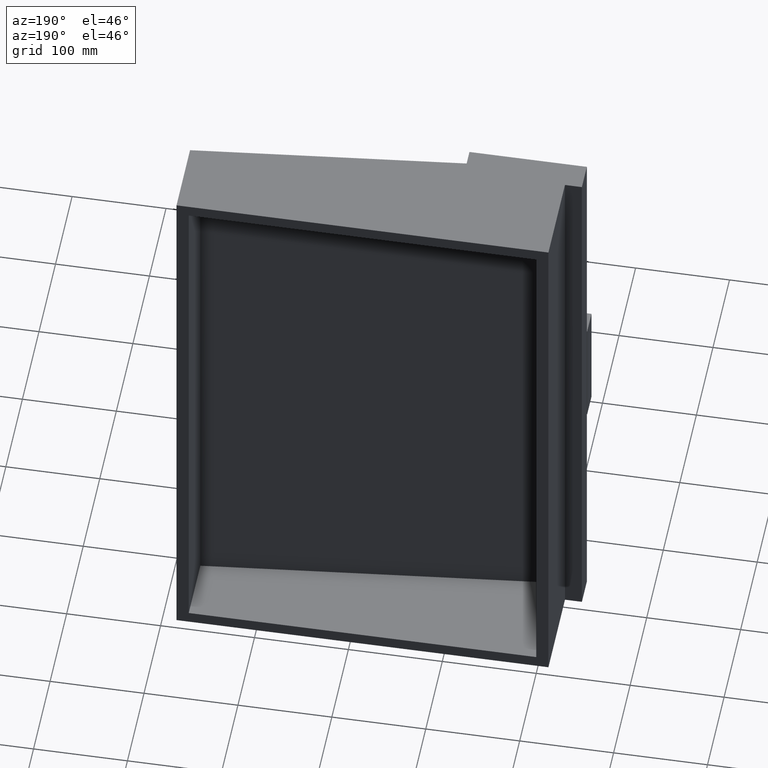
[diagram: clean part render]
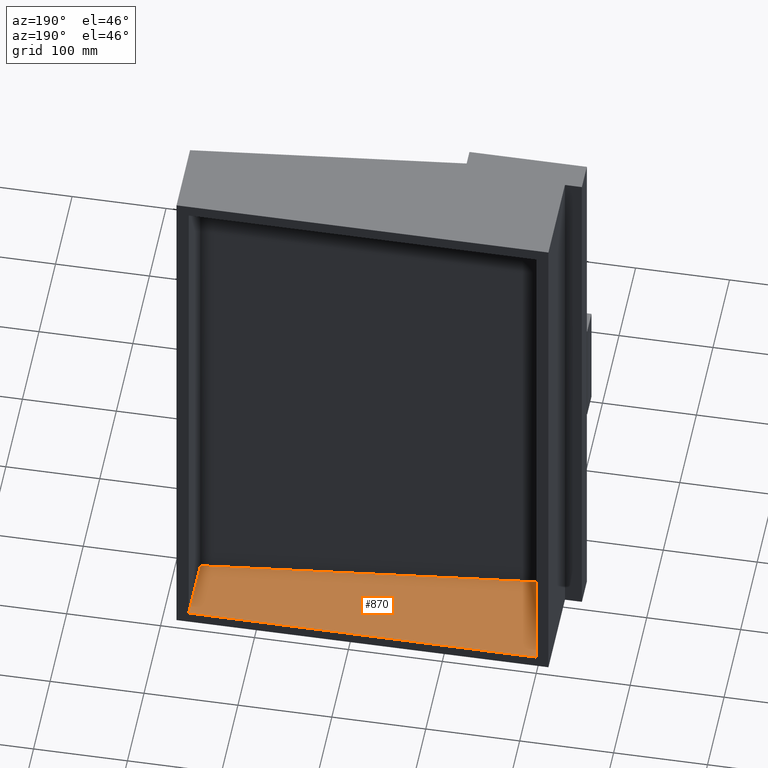
[diagram: same view with one face highlighted and labeled with its STEP entity id]
A machine part, auxiliary view. The second image highlights one B-rep face of the part: STEP entity #870.
In plain terms, the highlighted planar face has unit normal (0, 0, 1).
Its self-contained STEP definition (entity closure, byte-faithful):
#91 = VECTOR ( 'NONE', #454, 1000.000000000000000 ) ;
#123 = LINE ( 'NONE', #617, #1893 ) ;
#133 = ORIENTED_EDGE ( 'NONE', *, *, #2832, .F. ) ;
#158 = LINE ( 'NONE', #677, #91 ) ;
#350 = PLANE ( 'NONE',  #486 ) ;
#442 = CARTESIAN_POINT ( 'NONE',  ( 370.0000000000000000, 0.0000000000000000000, -600.0000000000000000 ) ) ;
#449 = CARTESIAN_POINT ( 'NONE',  ( 370.0000000000000000, 0.0000000000000000000, -600.0000000000000000 ) ) ;
#454 = DIRECTION ( 'NONE',  ( -0.0000000000000000000, 1.000000000000000000, -0.0000000000000000000 ) ) ;
#486 = AXIS2_PLACEMENT_3D ( 'NONE', #1455, #2127, #1899 ) ;
#594 = CARTESIAN_POINT ( 'NONE',  ( 5.000000000000006200, -110.0000000000000000, -600.0000000000000000 ) ) ;
#617 = CARTESIAN_POINT ( 'NONE',  ( 278.7316203875614100, -114.0000000000001000, -600.0000000000000000 ) ) ;
#665 = DIRECTION ( 'NONE',  ( 1.000000000000000000, -0.0000000000000000000, -0.0000000000000000000 ) ) ;
#677 = CARTESIAN_POINT ( 'NONE',  ( 0.0000000000000000000, 0.0000000000000000000, -600.0000000000000000 ) ) ;
#696 = FACE_OUTER_BOUND ( 'NONE', #1234, .T. ) ;
#793 = VECTOR ( 'NONE', #665, 1000.000000000000000 ) ;
#857 = CARTESIAN_POINT ( 'NONE',  ( 370.0000000000000000, -70.00000000000000000, -600.0000000000000000 ) ) ;
#870 = ADVANCED_FACE ( 'NONE', ( #696 ), #350, .T. ) ;
#951 = VECTOR ( 'NONE', #1995, 1000.000000000000000 ) ;
#955 = VECTOR ( 'NONE', #1977, 1000.000000000000000 ) ;
#1008 = LINE ( 'NONE', #442, #793 ) ;
#1010 = CARTESIAN_POINT ( 'NONE',  ( 370.0000000000000000, 0.0000000000000000000, -600.0000000000000000 ) ) ;
#1234 = EDGE_LOOP ( 'NONE', ( #2397, #2044, #1845, #2502, #1756, #133 ) ) ;
#1254 = CARTESIAN_POINT ( 'NONE',  ( 0.0000000000000000000, -114.0000000000001000, -600.0000000000000000 ) ) ;
#1330 = VERTEX_POINT ( 'NONE', #1405 ) ;
#1361 = DIRECTION ( 'NONE',  ( -0.9942070475658493200, -0.1074818429800917800, 0.0000000000000000000 ) ) ;
#1405 = CARTESIAN_POINT ( 'NONE',  ( 0.0000000000000000000, 0.0000000000000000000, -600.0000000000000000 ) ) ;
#1455 = CARTESIAN_POINT ( 'NONE',  ( 0.0000000000000000000, 0.0000000000000000000, -600.0000000000000000 ) ) ;
#1464 = VERTEX_POINT ( 'NONE', #1010 ) ;
#1517 = EDGE_CURVE ( 'NONE', #2213, #2525, #1547, .T. ) ;
#1547 = LINE ( 'NONE', #594, #955 ) ;
#1603 = EDGE_CURVE ( 'NONE', #2488, #1330, #158, .T. ) ;
#1650 = LINE ( 'NONE', #2731, #2867 ) ;
#1680 = EDGE_CURVE ( 'NONE', #1945, #2213, #1650, .T. ) ;
#1717 = DIRECTION ( 'NONE',  ( -1.000000000000000000, -0.0000000000000000000, -0.0000000000000000000 ) ) ;
#1756 = ORIENTED_EDGE ( 'NONE', *, *, #1680, .F. ) ;
#1845 = ORIENTED_EDGE ( 'NONE', *, *, #1849, .F. ) ;
#1849 = EDGE_CURVE ( 'NONE', #2525, #2488, #123, .T. ) ;
#1893 = VECTOR ( 'NONE', #1717, 1000.000000000000000 ) ;
#1899 = DIRECTION ( 'NONE',  ( 1.000000000000000000, 0.0000000000000000000, -0.0000000000000000000 ) ) ;
#1945 = VERTEX_POINT ( 'NONE', #857 ) ;
#1977 = DIRECTION ( 'NONE',  ( 3.209238430557043400E-015, -1.000000000000000000, -0.0000000000000000000 ) ) ;
#1986 = CARTESIAN_POINT ( 'NONE',  ( 5.000000000000004400, -109.4594594594594500, -600.0000000000000000 ) ) ;
#1995 = DIRECTION ( 'NONE',  ( 0.0000000000000000000, -1.000000000000000000, 0.0000000000000000000 ) ) ;
#2020 = EDGE_CURVE ( 'NONE', #1330, #1464, #1008, .T. ) ;
#2044 = ORIENTED_EDGE ( 'NONE', *, *, #1603, .F. ) ;
#2127 = DIRECTION ( 'NONE',  ( 0.0000000000000000000, 0.0000000000000000000, 1.000000000000000000 ) ) ;
#2213 = VERTEX_POINT ( 'NONE', #1986 ) ;
#2394 = CARTESIAN_POINT ( 'NONE',  ( 5.000000000000007100, -114.0000000000001000, -600.0000000000000000 ) ) ;
#2397 = ORIENTED_EDGE ( 'NONE', *, *, #2020, .F. ) ;
#2488 = VERTEX_POINT ( 'NONE', #1254 ) ;
#2502 = ORIENTED_EDGE ( 'NONE', *, *, #1517, .F. ) ;
#2525 = VERTEX_POINT ( 'NONE', #2394 ) ;
#2684 = LINE ( 'NONE', #449, #951 ) ;
#2731 = CARTESIAN_POINT ( 'NONE',  ( 370.0000000000000000, -70.00000000000000000, -600.0000000000000000 ) ) ;
#2832 = EDGE_CURVE ( 'NONE', #1464, #1945, #2684, .T. ) ;
#2867 = VECTOR ( 'NONE', #1361, 1000.000000000000000 ) ;